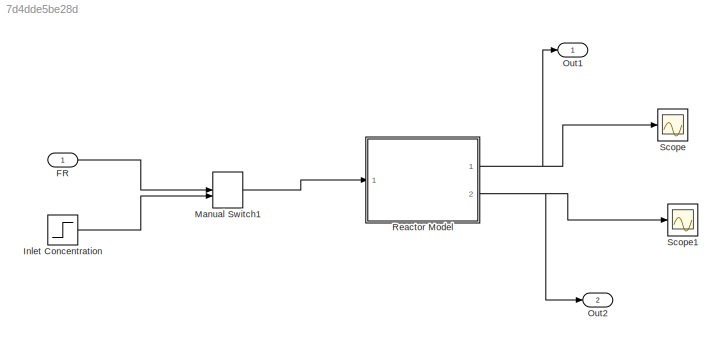
MODEL slx_7d4dde5be28d
KIND model
CONFIG AbsTol = auto
CONFIG EnableMultiTasking = off
CONFIG FixedStep = auto
CONFIG MaxStep = auto
CONFIG MinStep = auto
CONFIG RelTol = 1e-3
CONFIG SampleTimeConstraint = Unconstrained
CONFIG SolverName = VariableStepAuto
CONFIG StartTime = 0.0
CONFIG StopTime = 400
WORKSPACE source: MATLAB code (in-file)
WORKSPACE Ti = 549.67
WORKSPACE Cp = 0.8
WORKSPACE pho = 52
WORKSPACE delta_Hr = -500*10^3  (= -500000)
WORKSPACE V = 1200
WORKSPACE Fi = 20
WORKSPACE alpha = 2.4*10^15  (= 2.4e+15)
WORKSPACE beta = 2*10^4  (= 20000)
WORKSPACE Cp = 1.05506*10^3*0.8  (= 844.048)
WORKSPACE CAiss = 0.8
WORKSPACE Tinit = 559
WORKSPACE CAinit = 0.0193
BLOCK [Inport] FR
BLOCK [Step] Inlet Concentration
  After = CAiss*1.1
  Before = CAiss
  SampleTime = 0
  Time = 0
BLOCK [ManualSwitch] Manual Switch1
BLOCK [Outport] Out1
  SignalName = Concentration
BLOCK [Outport] Out2
  Port = 2
  SignalName = Temperature
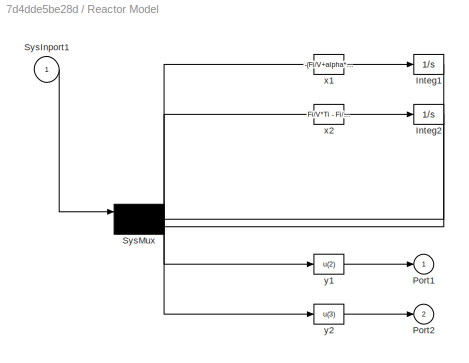
BLOCK [SubSystem] Reactor Model
  OpenFcn = diffeqed
  Ports = [1, 2]
  RequestExecContextInheritance = off
BLOCK [Integrator] Reactor Model/Integ1
  InitialCondition = CAinit
  Ports = [1, 1]
BLOCK [Integrator] Reactor Model/Integ2
  InitialCondition = Tinit
  Ports = [1, 1]
BLOCK [Outport] Reactor Model/Port1
  InitialOutput = 0
BLOCK [Outport] Reactor Model/Port2
  Port = 2
BLOCK [Inport] Reactor Model/SysInport1
BLOCK [Mux] Reactor Model/SysMux
  Inputs = 3
  Ports = [3, 1]
BLOCK [Fcn] Reactor Model/x1
  Expr = -(Fi/V+alpha*exp(-beta/u(3)))*u(2) + Fi/V*u(1)
BLOCK [Fcn] Reactor Model/x2
  Expr = Fi/V*Ti - Fi/V*u(3) - (delta_Hr)/(pho*Cp)*alpha*exp(-beta/u(3))*u(2)
BLOCK [Fcn] Reactor Model/y1
  Expr = u(2)
BLOCK [Fcn] Reactor Model/y2
  Expr = u(3)
BLOCK [Scope] Scope
  Floating = off
  NumInputPorts = 1
  Ports = [1]
  ScopeSpecificationString = Simulink.scopes.TimeScopeBlockCfg('CurrentConfiguration', extmgr.ConfigurationSet(extmgr.Configuration('Core','General UI',true),extmgr.Configuration('Core','Source UI',true),extmgr.Configuration('Sources','WiredSimulink',true),extmgr.Configuration('Visuals','Time Domain',true,'SerializedDisplays',{struct('MinYLimReal','0.01914','MaxYLimReal','0.02072','YLabelReal','','MinYLimMag','0.01914','MaxYL...<+1388ch>
BLOCK [Scope] Scope1
  Floating = off
  NumInputPorts = 1
  Ports = [1]
  ScopeSpecificationString = Simulink.scopes.TimeScopeBlockCfg('CurrentConfiguration', extmgr.ConfigurationSet(extmgr.Configuration('Core','General UI',true),extmgr.Configuration('Core','Source UI',true),extmgr.Configuration('Sources','WiredSimulink',true,'DataLoggingVariableName','ScopeData1'),extmgr.Configuration('Visuals','Time Domain',true,'SerializedDisplays',{struct('MinYLimReal','558.94171','MaxYLimReal','559.52463','Y...<+1443ch>
LINE FR:1 -> Manual Switch1:1
LINE Inlet Concentration:1 -> Manual Switch1:2
LINE Manual Switch1:1 -> Reactor Model:1
LINE Reactor Model/Integ1:1 -> Reactor Model/SysMux:2
LINE Reactor Model/Integ2:1 -> Reactor Model/SysMux:3
LINE Reactor Model/SysInport1:1 -> Reactor Model/SysMux:1
NET Reactor Model/SysMux:1 -> Reactor Model/x1:1, Reactor Model/x2:1, Reactor Model/y1:1, Reactor Model/y2:1
LINE Reactor Model/x1:1 -> Reactor Model/Integ1:1
LINE Reactor Model/x2:1 -> Reactor Model/Integ2:1
LINE Reactor Model/y1:1 -> Reactor Model/Port1:1
LINE Reactor Model/y2:1 -> Reactor Model/Port2:1
NET Reactor Model:1 -> Out1:1, Scope:1
NET Reactor Model:2 -> Out2:1, Scope1:1
note: NET lines group one-source signal fan-out (src -> all destinations, sorted); 1:1 wires keep LINE
